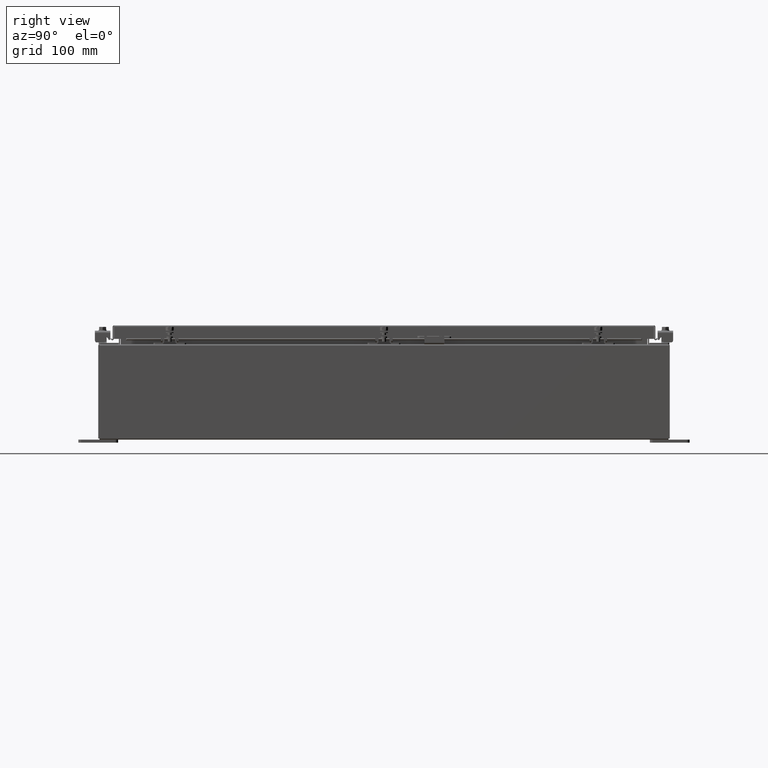
[diagram: clean part render]
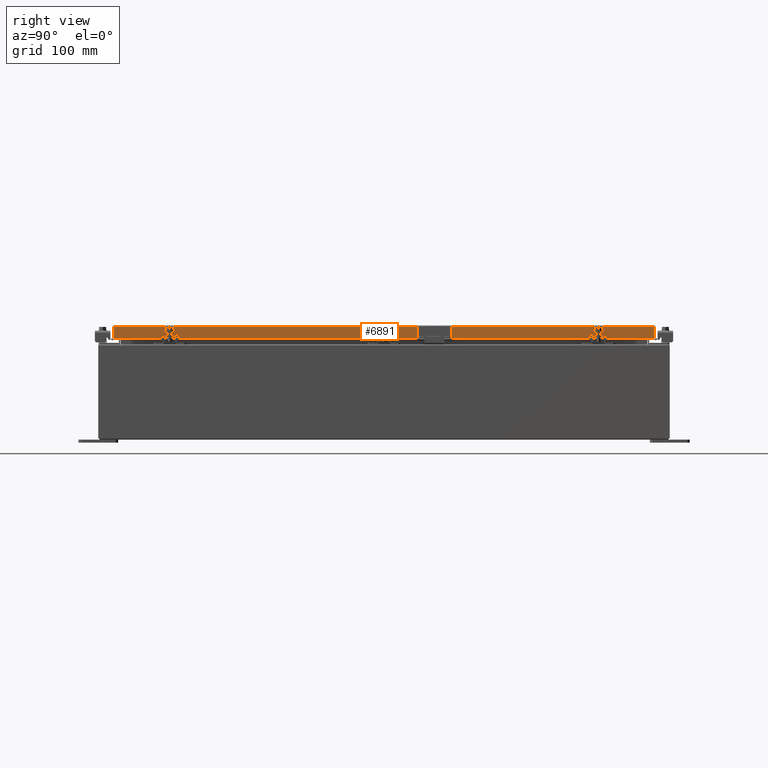
[diagram: same view with one face highlighted and labeled with its STEP entity id]
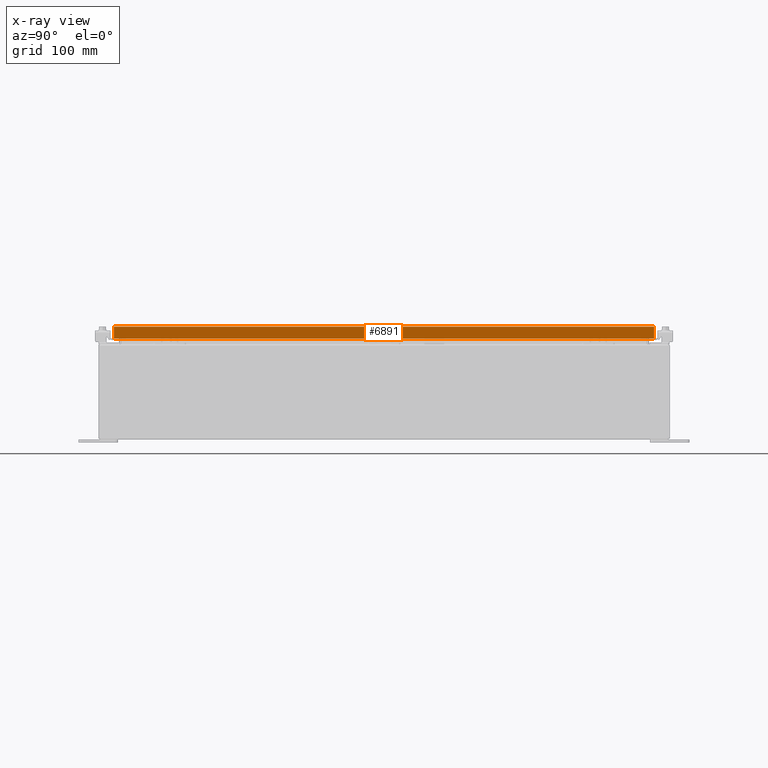
[diagram: x-ray of the same camera — body ghosted, the highlighted face saturated]
A machine part, right view. The second image highlights one B-rep face of the part: STEP entity #6891.
The next image is the same camera in x-ray: the body ghosted, the highlighted face saturated — about 0% of this face is hidden behind the body in this view.
In plain terms, the highlighted planar face has unit normal (1, 0, 0).
Its self-contained STEP definition (entity closure, byte-faithful):
#1329 = CARTESIAN_POINT ( 'NONE',  ( 11.07799999999999600, 17.00515786437627600, 1.502347594351464400E-013 ) ) ;
#2242 = DIRECTION ( 'NONE',  ( 0.0000000000000000000, -1.000000000000000000, 0.0000000000000000000 ) ) ;
#3364 = DIRECTION ( 'NONE',  ( -2.818880942772360500E-015, -6.982962677686269100E-015, 1.000000000000000000 ) ) ;
#5946 = EDGE_CURVE ( 'NONE', #21449, #11410, #35436, .T. ) ;
#6560 = CARTESIAN_POINT ( 'NONE',  ( 11.07799999999999600, 17.00515786437627600, -0.08770000000000007000 ) ) ;
#6891 = ADVANCED_FACE ( 'NONE', ( #20803 ), #33273, .T. ) ;
#7032 = ORIENTED_EDGE ( 'NONE', *, *, #5946, .T. ) ;
#7124 = ORIENTED_EDGE ( 'NONE', *, *, #32041, .F. ) ;
#7529 = LINE ( 'NONE', #37901, #23789 ) ;
#7595 = VECTOR ( 'NONE', #10865, 39.37007874015748100 ) ;
#7669 = ORIENTED_EDGE ( 'NONE', *, *, #27140, .F. ) ;
#8192 = LINE ( 'NONE', #11765, #42170 ) ;
#8667 = VECTOR ( 'NONE', #24314, 39.37007874015748100 ) ;
#10582 = VECTOR ( 'NONE', #2242, 39.37007874015748100 ) ;
#10865 = DIRECTION ( 'NONE',  ( 0.0000000000000000000, -1.000000000000000000, 0.0000000000000000000 ) ) ;
#11410 = VERTEX_POINT ( 'NONE', #6560 ) ;
#11765 = CARTESIAN_POINT ( 'NONE',  ( 11.07799999999999600, -17.00515786437626500, -0.07469999999999978000 ) ) ;
#12343 = VERTEX_POINT ( 'NONE', #21805 ) ;
#13067 = CARTESIAN_POINT ( 'NONE',  ( 11.07799999999998900, -16.25515786437626200, -0.8500000000000016400 ) ) ;
#14706 = VERTEX_POINT ( 'NONE', #15669 ) ;
#14968 = DIRECTION ( 'NONE',  ( -2.818880942772360500E-015, -6.982962677686269100E-015, 1.000000000000000000 ) ) ;
#15669 = CARTESIAN_POINT ( 'NONE',  ( 11.07799999999999800, -17.00515786437626200, -0.8499999999999996400 ) ) ;
#16449 = ORIENTED_EDGE ( 'NONE', *, *, #39750, .F. ) ;
#17407 = AXIS2_PLACEMENT_3D ( 'NONE', #36413, #32954, #31256 ) ;
#19113 = LINE ( 'NONE', #38898, #10582 ) ;
#20803 = FACE_OUTER_BOUND ( 'NONE', #27142, .T. ) ;
#21449 = VERTEX_POINT ( 'NONE', #40149 ) ;
#21490 = LINE ( 'NONE', #33197, #7595 ) ;
#21805 = CARTESIAN_POINT ( 'NONE',  ( 11.07799999999999600, -17.00515786437626500, -0.08770000000000007000 ) ) ;
#22575 = ORIENTED_EDGE ( 'NONE', *, *, #23332, .F. ) ;
#23332 = EDGE_CURVE ( 'NONE', #27609, #31983, #21490, .T. ) ;
#23789 = VECTOR ( 'NONE', #34792, 39.37007874015748100 ) ;
#24314 = DIRECTION ( 'NONE',  ( 0.0000000000000000000, -1.000000000000000000, 0.0000000000000000000 ) ) ;
#27140 = EDGE_CURVE ( 'NONE', #31983, #14706, #30586, .T. ) ;
#27142 = EDGE_LOOP ( 'NONE', ( #16449, #7669, #22575, #7124, #7032, #27284 ) ) ;
#27284 = ORIENTED_EDGE ( 'NONE', *, *, #31235, .T. ) ;
#27609 = VERTEX_POINT ( 'NONE', #41583 ) ;
#30586 = LINE ( 'NONE', #33857, #8667 ) ;
#31235 = EDGE_CURVE ( 'NONE', #11410, #12343, #7529, .T. ) ;
#31256 = DIRECTION ( 'NONE',  ( 2.818880942772360100E-015, 0.0000000000000000000, -1.000000000000000000 ) ) ;
#31983 = VERTEX_POINT ( 'NONE', #13067 ) ;
#32041 = EDGE_CURVE ( 'NONE', #21449, #27609, #19113, .T. ) ;
#32954 = DIRECTION ( 'NONE',  ( 1.000000000000000000, 0.0000000000000000000, 2.818880942772360100E-015 ) ) ;
#33197 = CARTESIAN_POINT ( 'NONE',  ( 11.07799999999998900, 16.25515786437628300, -0.8500000000000016400 ) ) ;
#33273 = PLANE ( 'NONE',  #17407 ) ;
#33857 = CARTESIAN_POINT ( 'NONE',  ( 11.07799999999999800, -17.09399999999999800, -0.8499999999999996400 ) ) ;
#34792 = DIRECTION ( 'NONE',  ( 0.0000000000000000000, -1.000000000000000000, 0.0000000000000000000 ) ) ;
#35436 = LINE ( 'NONE', #1329, #40482 ) ;
#36413 = CARTESIAN_POINT ( 'NONE',  ( 11.07799999999999600, 0.0000000000000000000, 3.148837674004377800E-014 ) ) ;
#37901 = CARTESIAN_POINT ( 'NONE',  ( 11.07799999999999600, 0.0000000000000000000, -0.08770000000000007000 ) ) ;
#38898 = CARTESIAN_POINT ( 'NONE',  ( 11.07799999999999800, -17.09399999999999800, -0.8499999999999996400 ) ) ;
#39750 = EDGE_CURVE ( 'NONE', #14706, #12343, #8192, .T. ) ;
#40149 = CARTESIAN_POINT ( 'NONE',  ( 11.07799999999999800, 17.00515786437628000, -0.8499999999999996400 ) ) ;
#40482 = VECTOR ( 'NONE', #3364, 39.37007874015748100 ) ;
#41583 = CARTESIAN_POINT ( 'NONE',  ( 11.07799999999998900, 16.25515786437628000, -0.8500000000000016400 ) ) ;
#42170 = VECTOR ( 'NONE', #14968, 39.37007874015748100 ) ;